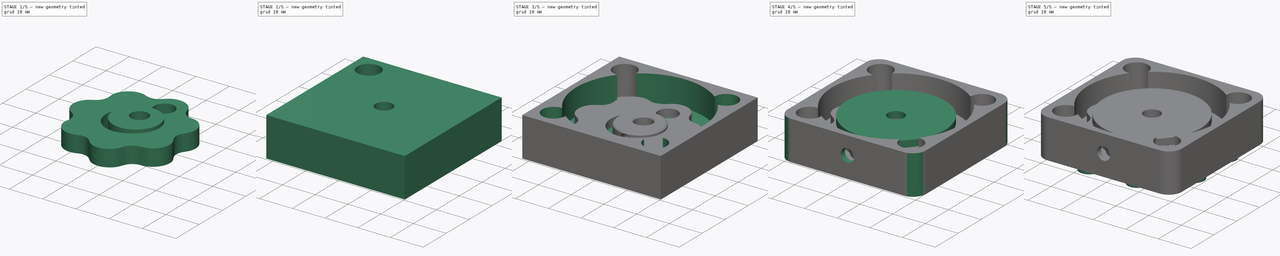
[diagram: build sequence overview — one tinted view per stage of 5, left to right]
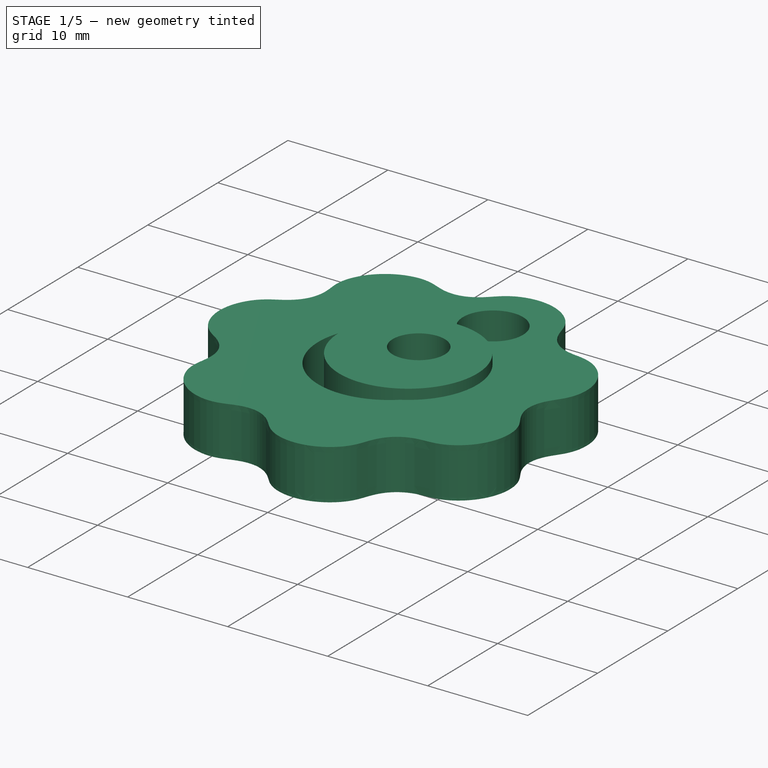
[diagram: stage 1 of 5 — iso view after this stage's code; geometry added in this stage tinted green]
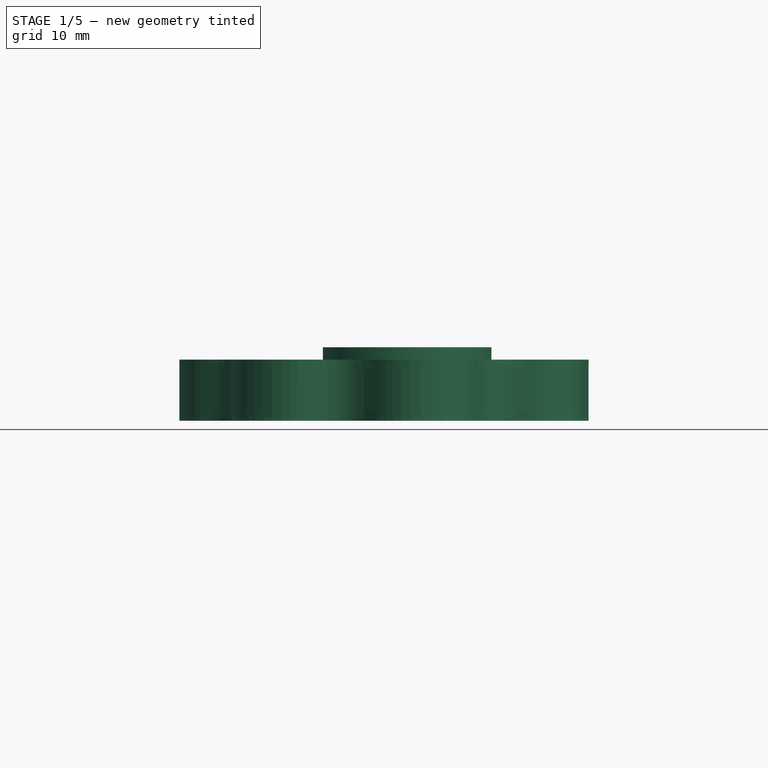
[diagram: stage 1 of 5 — front view after this stage's code; geometry added in this stage tinted green]
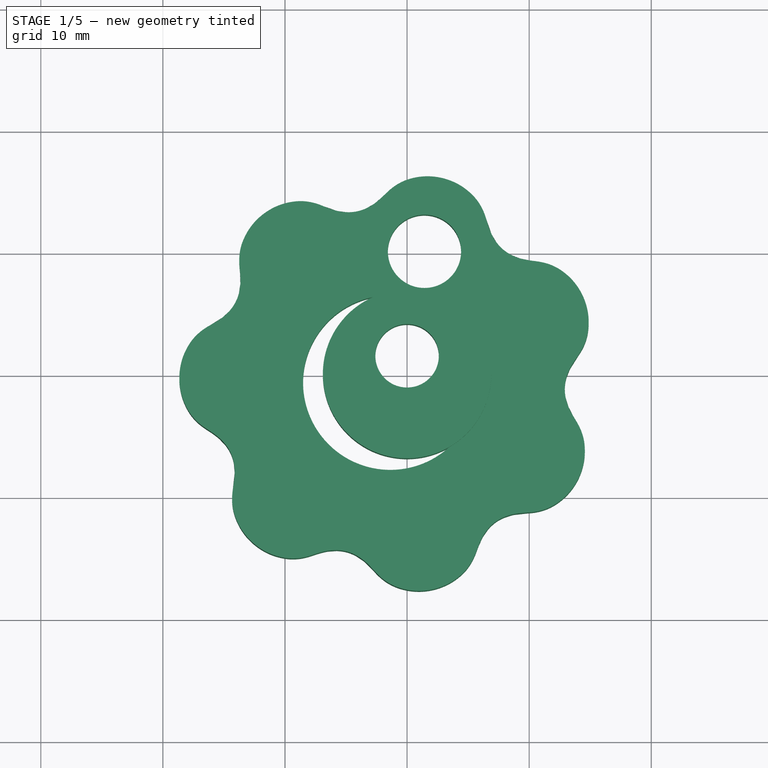
[diagram: stage 1 of 5 — top view after this stage's code; geometry added in this stage tinted green]
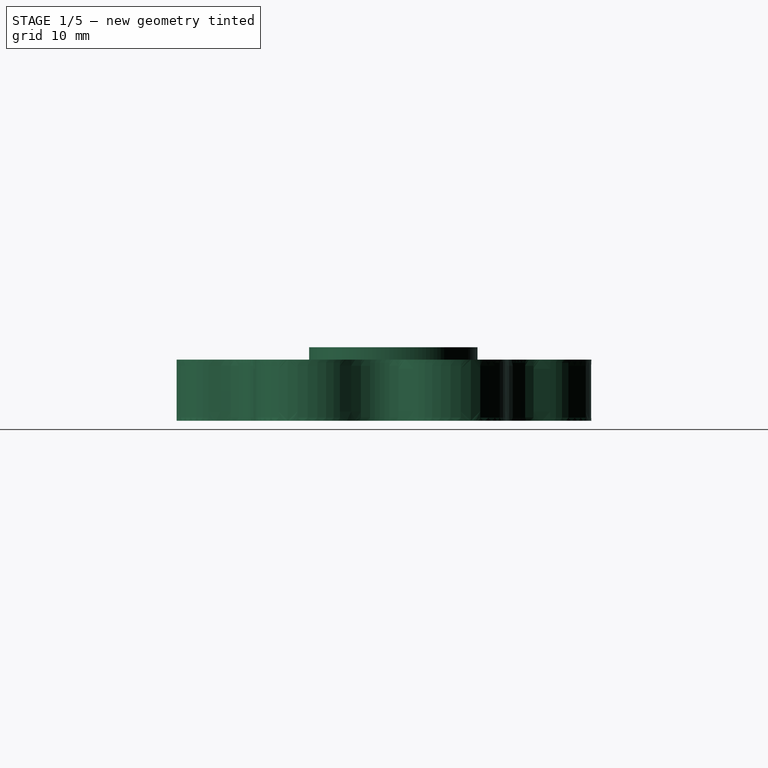
[diagram: stage 1 of 5 — right view after this stage's code; geometry added in this stage tinted green]
FCSTD DOCUMENT  (FreeCAD 0.19R24267 +99 (Git))
Label: GearboxCycloidal
License: All rights reserved
LicenseURL: http://en.wikipedia.org/wiki/All_rights_reserved
objects: Sketcher::SketchObject×10, PartDesign::CoordinateSystem×7, PartDesign::Pocket×5, PartDesign::Body×5, PartDesign::Pad×4, App::Part×4, PartDesign::PolarPattern×3, PartDesign::FeaturePython×2, PartDesign::Line×2, Spreadsheet::Sheet×1, PartDesign::Hole×1, PartDesign::Fillet×1, PartDesign::Chamfer×1, App::DocumentObjectGroup×1
note: 53 computed .brp shape members not serialized (recipe doc carries the construction recipe); baked Part::Feature solids carry a one-line shape summary decoded from their .brp

FEATURE [Sketcher::SketchObject] Sketch008
  FullyConstrained = false
  MapMode = 5
  Support = -> [XY_Plane010]
  expr: Constraints[2] = Spreadsheet.Eccentricity
  expr: Constraints[1] = Spreadsheet.AcenterOuterDiameter - Spreadsheet.AcenterOuterDiameterCorrection
  expr: Constraints[0] = Spreadsheet.StepperAxisHoleDiameter
  sketch-geometry (2):
    g0: Circle CenterX=0 CenterY=1.57071 CenterZ=0 NormalX=0 NormalY=0 NormalZ=1 AngleXU=0 Radius=2.6
    g1: Circle CenterX=0 CenterY=0.0707107 CenterZ=0 NormalX=0 NormalY=0 NormalZ=1 AngleXU=0 Radius=6.9
  constraints (3):
    c: Diameter(g0) = 5.2
    c: Diameter(g1) = 13.8
    c: DistanceY(g1,g0) = 1.5
FEATURE [PartDesign::Pad] Pad002
  Direction = (1,1,1)
  Length = 5
  Length2 = 100
  Profile = -> Sketch008
  Refine = true
  Type = 0
  expr: Length = Spreadsheet.AcenterHeight
FEATURE [PartDesign::CoordinateSystem] Top
  AttacherType = Attacher::AttachEngine3D
  MapMode = 11
  Placement = pos=(-9e-16,0.0707107,5) rot=(0,0,1;1.5708rad)
  Support = -> [Pad002]
FEATURE [PartDesign::CoordinateSystem] Bottom
  AttacherType = Attacher::AttachEngine3D
  MapMode = 11
  Placement = pos=(-9e-16,0.0707107,0) rot=(0,0,1;1.5708rad)
  Support = -> [Pad002]
FEATURE [PartDesign::Body] Body002  label="Acenter Body"
  Group = -> [Sketch008,Pad002,Sketch009,Pocket003,Chamfer,Top,Bottom]
  Origin = -> Origin010
  Placement = pos=(-1.5,-0.6,0) rot=(0,0,-1;1.22173rad)
  Tip = -> Chamfer
FEATURE [PartDesign::CoordinateSystem] Bottom001
  AttacherType = Attacher::AttachEngine3D
  MapMode = 5
  Placement = pos=(0,0,-2.5) rot=(1,0,0;3.14159rad)
  Support = -> [Pad]
FEATURE [PartDesign::CoordinateSystem] Base  label="Base001"
  AttacherType = Attacher::AttachEngine3D
  MapMode = 5
  Placement = pos=(0,0,1.5) rot=(0,0,1;0rad)
  Support = -> [Pocket001]
FEATURE [PartDesign::CoordinateSystem] Top001
  AttacherType = Attacher::AttachEngine3D
  MapMode = 5
  Placement = pos=(0,0,9.5) rot=(0,0,1;0rad)
  Support = -> [Pocket001]
FEATURE [PartDesign::CoordinateSystem] Bottom003
  AttacherType = Attacher::AttachEngine3D
  MapMode = 5
  Placement = pos=(0,0,-3.51) rot=(0.978148,0.207912,0;3.14159rad)
  Support = -> [hypocycloidgear001]
FEATURE [PartDesign::Body] hypocycloidgear001Body  label="hypocycloidgearRollers"
  Group = -> [hypocycloidgear001,Bottom003]
  Origin = -> Origin009
  Tip = -> hypocycloidgear001
FEATURE [PartDesign::FeaturePython] hypocycloidgear002  label="hypocycloidgear3Dprinter001"  # WARN: FeaturePython — macro-defined, semantics opaque (R4)
  AttacherType = Attacher::AttachEngine3D
  Placement = pos=(0,0,-1.01) rot=(0,0,1;0.418879rad)
  center_pins = true
  disk_height = 5
  eccentricity = 1.5
  hole_radius = 7.15
  pin_circle_radius = 18.8
  pin_height = 5
  pressure_angle_lim = 50
  pressure_angle_offset = 0.01
  roller_diameter = 6
  segment_count = 20
  show_disk0 = true
  show_disk1 = false
  show_pins = false
  teeth_number = 7
  version = 0.0.3
  expr: roller_diameter = Spreadsheet.RollerDiameter
  expr: teeth_number = Spreadsheet.TeethNumber
  expr: eccentricity = Spreadsheet.Eccentricity
  expr: pin_height = Spreadsheet.GearHeight
  expr: disk_height = Spreadsheet.GearHeight
  expr: hole_radius = 7.15
  expr: pin_circle_radius = Spreadsheet.PinCircleRadius - Spreadsheet.PinCircleRadiusCorrection
FEATURE [PartDesign::CoordinateSystem] Bottom005
  AttacherType = Attacher::AttachEngine3D
  MapMode = 5
  Placement = pos=(0,0,-1.01) rot=(0.978148,0.207912,0;3.14159rad)
  Support = -> [hypocycloidgear002]
FEATURE [PartDesign::Line] DatumLine002  label="CycloidCenter"
  AttacherType = Attacher::AttachEngineLine
  Length = 20
  MapMode = 19
  Placement = pos=(-1.37032,-0.610105,3.99) rot=(0,0,1;0.418879rad)
  ResizeMode = 0
  Support = -> [hypocycloidgear002]
FEATURE [Sketcher::SketchObject] Sketch019
  FullyConstrained = true
  MapMode = 2
  Placement = pos=(-1.37032,-0.610105,3.99) rot=(0,0,1;0.418879rad)
  Support = -> [DatumLine002]
  expr: Constraints[4] = 360 / Spreadsheet.TeethNumber
  expr: Constraints[1] = Spreadsheet.OutputShaftHoleRadius
  expr: Constraints[0] = Spreadsheet.OuputShaftHoleDiameter
  sketch-geometry (2):
    g0: Circle CenterX=6.92697 CenterY=8.68615 CenterZ=0 NormalX=0 NormalY=0 NormalZ=1 AngleXU=0 Radius=3
    g1: LineSegment StartX=6.92697 StartY=8.68615 StartZ=0 EndX=9e-16 EndY=0 EndZ=0
  constraints (5):
    c: Diameter(g0) = 6
    c: Distance(g0,g-1) = 11.11
    c: Coincident(g1,g0)
    c: Coincident(g1,g-1)
    c: Angle(g-1,g1) = 0.897598
FEATURE [PartDesign::Pocket] Pocket004
  BaseFeature = -> hypocycloidgear002
  Length = 5
  Length2 = 100
  Placement = pos=(0,0,-1.01) rot=(0,0,1;0.418879rad)
  Profile = -> Sketch019
  Refine = true
  Type = 1
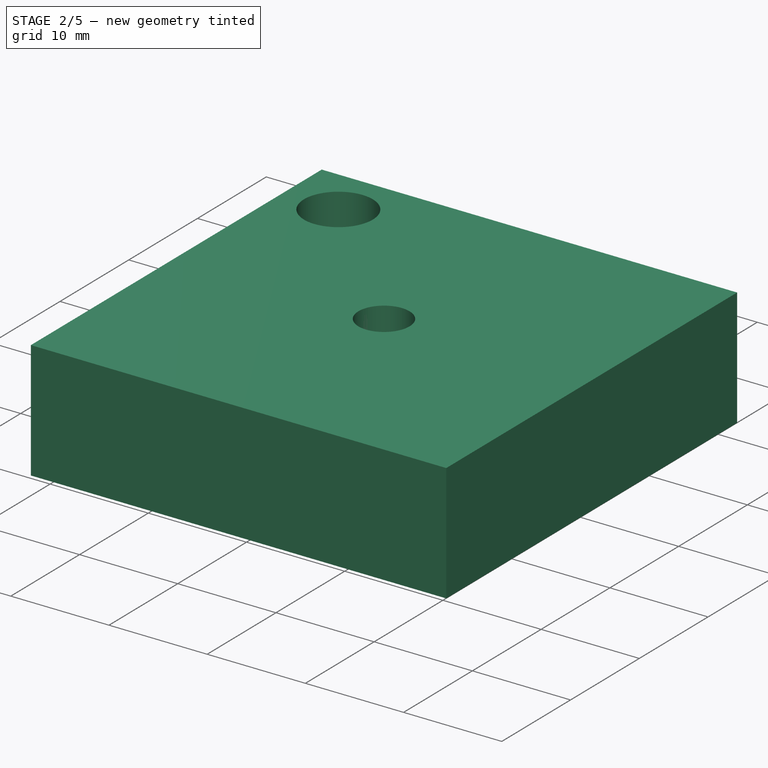
[diagram: stage 2 of 5 — iso view after this stage's code; geometry added in this stage tinted green]
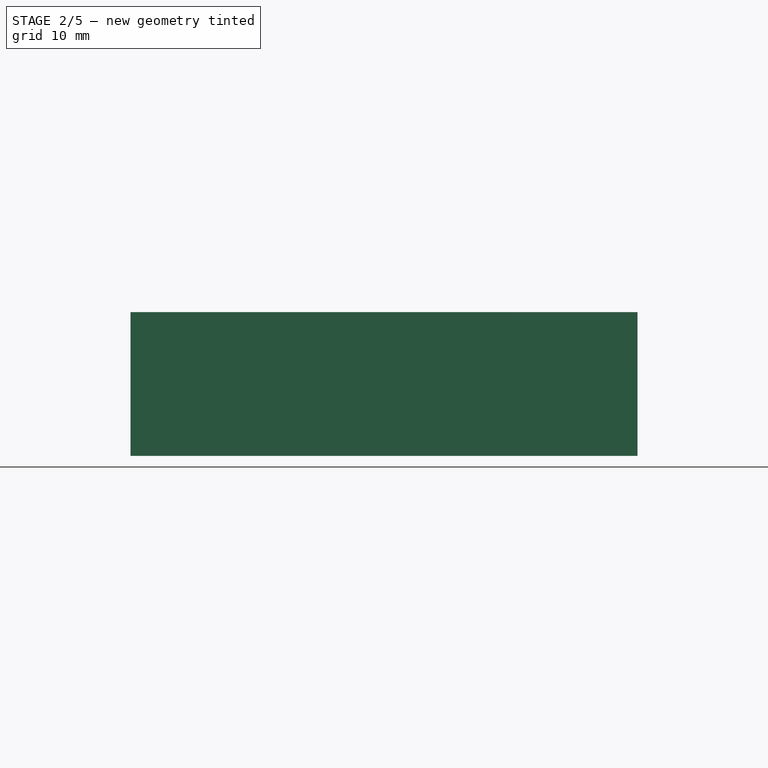
[diagram: stage 2 of 5 — front view after this stage's code; geometry added in this stage tinted green]
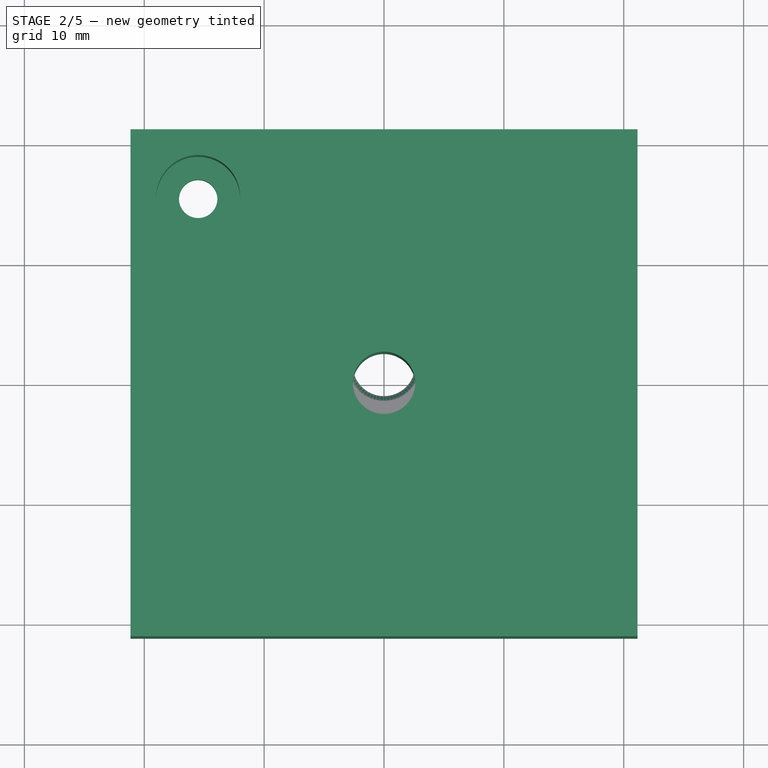
[diagram: stage 2 of 5 — top view after this stage's code; geometry added in this stage tinted green]
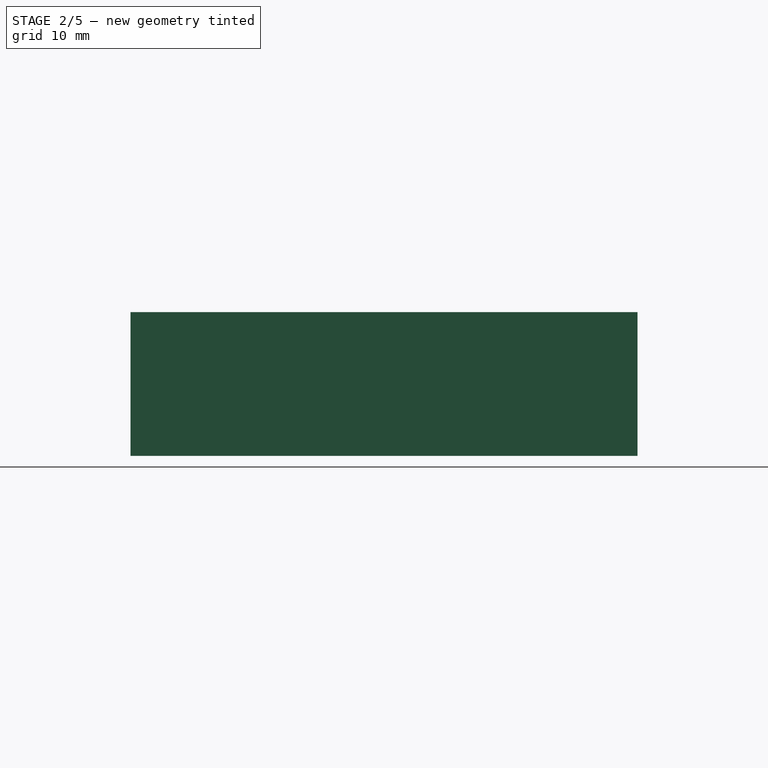
[diagram: stage 2 of 5 — right view after this stage's code; geometry added in this stage tinted green]
FEATURE [Sketcher::SketchObject] Sketch  label="BaseSheet"
  AttachmentOffset = pos=(0,0,-2.5) rot=(0,0,1;0rad)
  FullyConstrained = true
  MapMode = 5
  Placement = pos=(0,0,-2.5) rot=(0,0,1;0rad)
  Support = -> [XY_Plane]
  sketch-geometry (5):
    g0: LineSegment StartX=-21.15 StartY=-21.15 StartZ=0 EndX=21.15 EndY=-21.15 EndZ=0
    g1: LineSegment StartX=21.15 StartY=-21.15 StartZ=0 EndX=21.15 EndY=21.15 EndZ=0
    g2: LineSegment StartX=21.15 StartY=21.15 StartZ=0 EndX=-21.15 EndY=21.15 EndZ=0
    g3: LineSegment StartX=-21.15 StartY=21.15 StartZ=0 EndX=-21.15 EndY=-21.15 EndZ=0
    g4: Circle CenterX=0 CenterY=0 CenterZ=0 NormalX=0 NormalY=0 NormalZ=1 AngleXU=0 Radius=2.6
  constraints (13):
    c: Coincident(g0,g1)
    c: Coincident(g1,g2)
    c: Coincident(g2,g3)
    c: Coincident(g3,g0)
    c: Horizontal(g0)
    c: Horizontal(g2)
    c: Vertical(g1)
    c: Vertical(g3)
    c: Symmetric(g0,g1,g-1)
    c: DistanceX(g2,g2) = 42.3
    c: Equal(g2,g3)
    c: Coincident(g4,g-1)
    c: Diameter(g4) = 5.2
FEATURE [PartDesign::Pad] Pad  label="Base"
  Direction = (1,1,1)
  Length = 12
  Length2 = 100
  Profile = -> Sketch
  Refine = true
  Type = 0
FEATURE [Sketcher::SketchObject] Sketch001
  FullyConstrained = true
  MapMode = 5
  Placement = pos=(0,0,9.5) rot=(0,0,1;0rad)
  Support = -> [Pad]
  sketch-geometry (1):
    g0: Circle CenterX=-15.5 CenterY=15.5 CenterZ=0 NormalX=0 NormalY=0 NormalZ=1 AngleXU=0 Radius=1.6
  constraints (3):
    c: Diameter(g0) = 3.2
    c: DistanceY(g-1,g0) = 15.5
    c: DistanceX(g0,g-1) = 15.5
FEATURE [Spreadsheet::Sheet] Spreadsheet  label="Dimensions"
  cells = A2=Stepper; A3=StepperSize; B3=42.3; A4=StepperAxisDiameter; B4(StepperAxisDiameter)=5; A5=StepperBoltHolediameter; B5=3.2; A6=StepperRegisterDiameter; B6=22; A7=StepperRegisterHeight; B7=2.5; A8=StepperBoltDistance; B8=15.5; A9=StepperAxisHoleDiameter; B9(StepperAxisHoleDiameter)=5.2; A11=Base; A14=Cycloid Gear; A15=PinCircleRadius; B15(PinCircleRadius)=19; A16=HoleRadius; B16(HoleRadius)=14.2; A17=Eccentricity; B17(Eccentricity)=1.5; A18=PinCircleRadiusCorrection; B18(PinCircleRadiusCorrection)=0.2; A19=HoleRadiusCorrection; B19(HoleRadiusCorrection)=0; A20=GearHeight; B20(GearHeight)=5; A21=RollerDiameter; B21(RollerDiameter)=6; A22=TeethNumber; B22(TeethNumber)=7; A23=OuputShaftHoleDiameter; B23(OuputShaftHoleDiameter)=6; A24=OutputShaftHoleRadius; B24(OutputShaftHoleRadius)=11.11; A25=OutputShaftHoleRotation; B25(OutputShaftHoleRotation)==90 - 360 / B22; A27=Acenter; A28=AcenterOuterDiameter; B28(AcenterOuterDiameter)=14; A29=StepperAxisDiameterCorrection; B29(StepperAxisDiameterCorrection)=0.2; A30=AcenterOuterDiameterCorrection; B30(AcenterOuterDiameterCorrection)=0.2; A31=AcenterHeight; B31(AcenterHeight)=5; A32=AcenterScrewHeight; B32(AcenterScrewHeight)=2.5; A33=AcenterScrewHole; B33(AcenterScrewHole)=3.2; A35=OutputShaft; A36=OutputShaftHeigth; B36(OutputShaftHeigth)=2; A37=PillarHeigth; B37(PillarHeigth)=3; A38=PillarDiameter; B38(PillarDiameter)==B23 - B17 * 2 + B41; A39=OutputShaftDiameter; B39(OutputShaftDiameter)=30; A40=PillarRadius; B40(PillarRadius)=10; A41=PillarDiameterCorrection; B41(PillarDiameterCorrection)=-0.2
FEATURE [PartDesign::Hole] Hole
  BaseFeature = -> Pad
  Depth = 25
  DepthType = 1
  Diameter = 3.2
  DrillForDepth = false
  DrillPoint = 1
  DrillPointAngle = 118
  HoleCutCountersinkAngle = 90
  HoleCutCustomValues = false
  HoleCutDepth = 9
  HoleCutDiameter = 7
  HoleCutType = 1
  ModelActualThread = false
  Profile = -> Sketch001
  Refine = true
  Tapered = false
  TaperedAngle = 90
  ThreadAngle = 0
  ThreadClass = 0
  ThreadCutOffInner = 0
  ThreadCutOffOuter = 0
  ThreadDirection = 0
  ThreadFit = 0
  ThreadPitch = 0
  ThreadSize = 0
  ThreadType = 0
  Threaded = false
FEATURE [Sketcher::SketchObject] Sketch009
  FullyConstrained = true
  MapMode = 5
  Placement = pos=(0,0,0) rot=(1,0,0;1.5708rad)
  Support = -> [XZ_Plane010]
  expr: Constraints[1] = Spreadsheet.AcenterScrewHole
  expr: Constraints[2] = Spreadsheet.AcenterScrewHeight
  sketch-geometry (1):
    g0: Circle CenterX=0 CenterY=2.5 CenterZ=0 NormalX=0 NormalY=0 NormalZ=1 AngleXU=0 Radius=1.6
  constraints (3):
    c: PointOnObject(g0,g-2)
    c: Diameter(g0) = 3.2
    c: DistanceY(g-1,g0) = 2.5
FEATURE [PartDesign::Pocket] Pocket003
  BaseFeature = -> Pad002
  Length = 5
  Length2 = 100
  Profile = -> Sketch009
  Refine = true
  Reversed = true
  Type = 1
FEATURE [PartDesign::Chamfer] Chamfer
  Angle = 45
  Base = -> Pocket003 [Face5,Face1]
  BaseFeature = -> Pocket003
  ChamferType = 0
  FlipDirection = false
  Refine = true
  Size = 0.4
  Size2 = 1
  SupportTransform = false
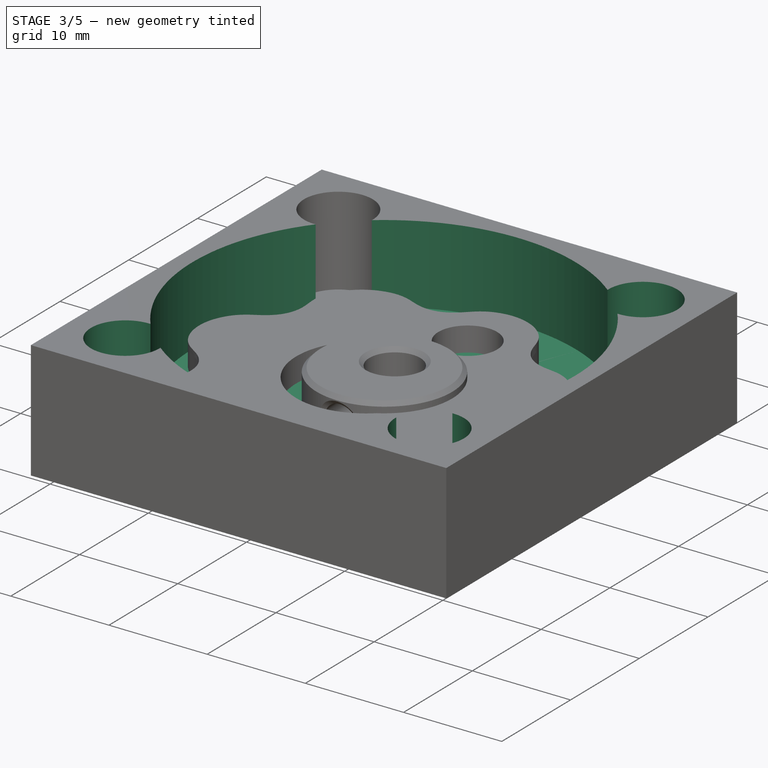
[diagram: stage 3 of 5 — iso view after this stage's code; geometry added in this stage tinted green]
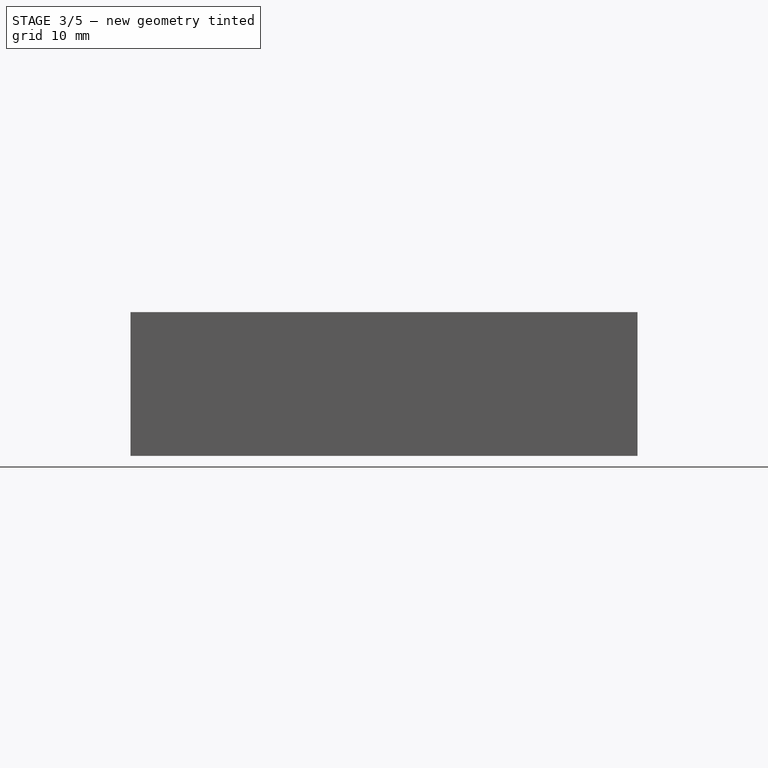
[diagram: stage 3 of 5 — front view after this stage's code; geometry added in this stage tinted green]
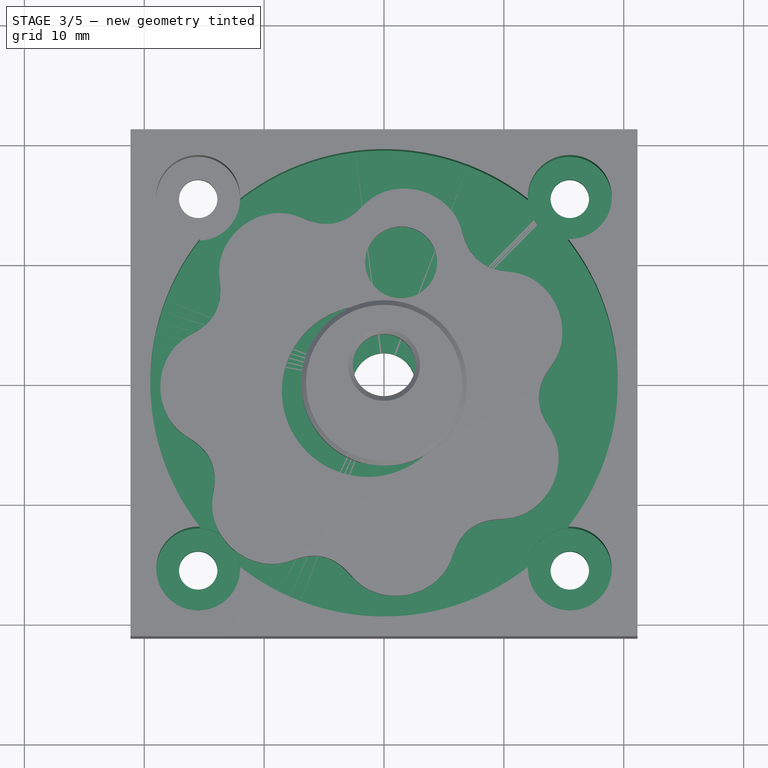
[diagram: stage 3 of 5 — top view after this stage's code; geometry added in this stage tinted green]
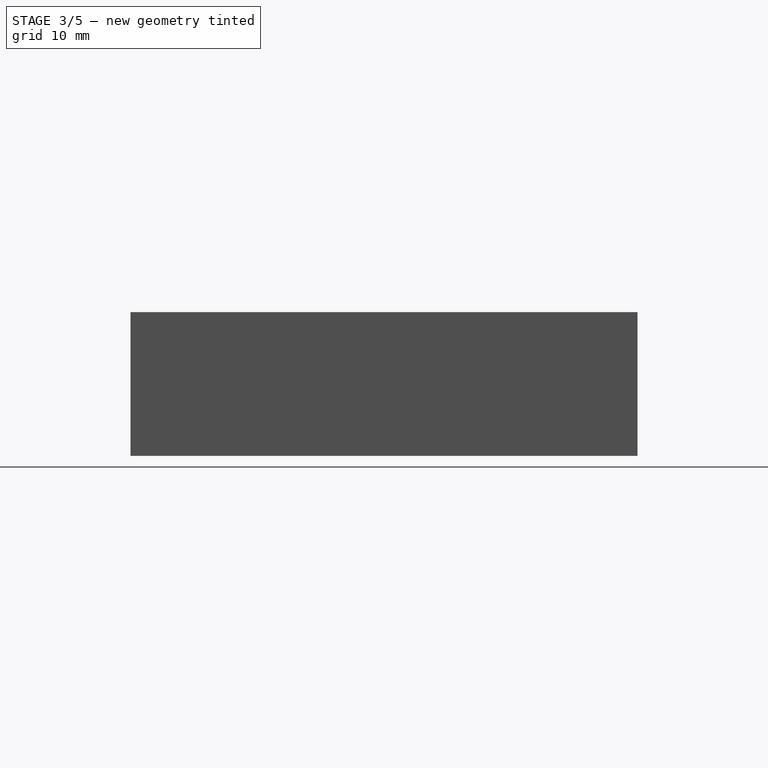
[diagram: stage 3 of 5 — right view after this stage's code; geometry added in this stage tinted green]
FEATURE [PartDesign::PolarPattern] PolarPattern
  Angle = 360
  Axis = -> Sketch001 [N_Axis]
  BaseFeature = -> Hole
  Occurrences = 4
  Originals = -> [Hole]
  Refine = true
FEATURE [Sketcher::SketchObject] Sketch002  label="StepperRegister001"
  FullyConstrained = true
  MapMode = 5
  Placement = pos=(0,0,-2.5) rot=(1,0,0;3.14159rad)
  Support = -> [PolarPattern]
  sketch-geometry (1):
    g0: Circle CenterX=0 CenterY=0 CenterZ=0 NormalX=0 NormalY=0 NormalZ=1 AngleXU=0 Radius=11.15
  constraints (2):
    c: Coincident(g0,g-1)
    c: Diameter(g0) = 22.3
FEATURE [PartDesign::Pocket] Pocket  label="StepperRegister"
  BaseFeature = -> PolarPattern
  Length = 2.5
  Length2 = 100
  Profile = -> Sketch002
  Refine = true
  Type = 0
FEATURE [Sketcher::SketchObject] Sketch004  label="CycloicPocket"
  FullyConstrained = true
  MapMode = 5
  Placement = pos=(0,0,9.5) rot=(0,0,1;0rad)
  Support = -> [Pocket]
  expr: Constraints[1] = Spreadsheet.PinCircleRadius * 2 + 1
  sketch-geometry (1):
    g0: Circle CenterX=0 CenterY=0 CenterZ=0 NormalX=0 NormalY=0 NormalZ=1 AngleXU=0 Radius=19.5
  constraints (2):
    c: Coincident(g0,g-1)
    c: Diameter(g0) = 39
FEATURE [PartDesign::Pocket] Pocket001
  BaseFeature = -> Pocket
  Length = 8
  Length2 = 100
  Profile = -> Sketch004
  Refine = true
  Type = 0
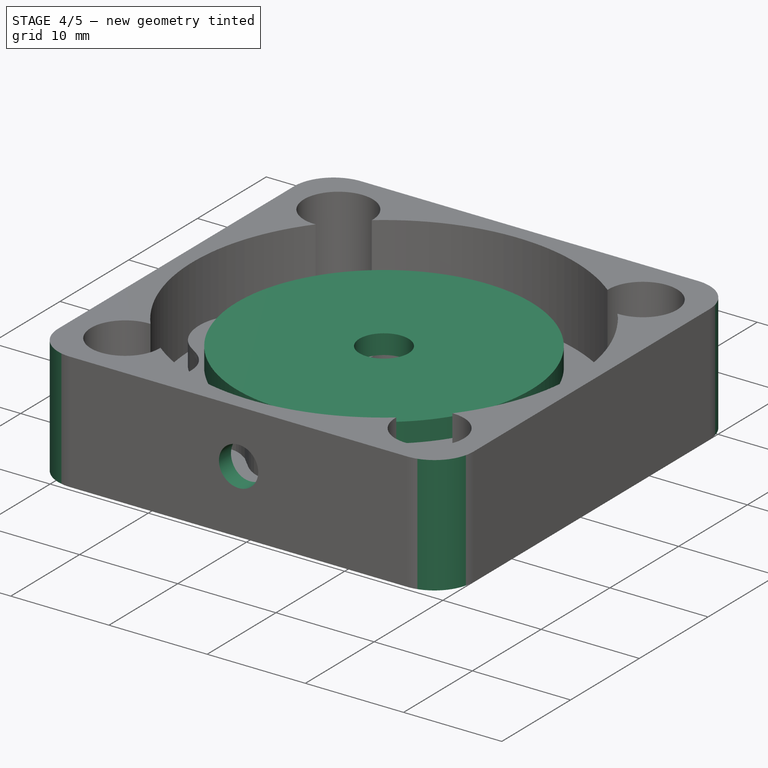
[diagram: stage 4 of 5 — iso view after this stage's code; geometry added in this stage tinted green]
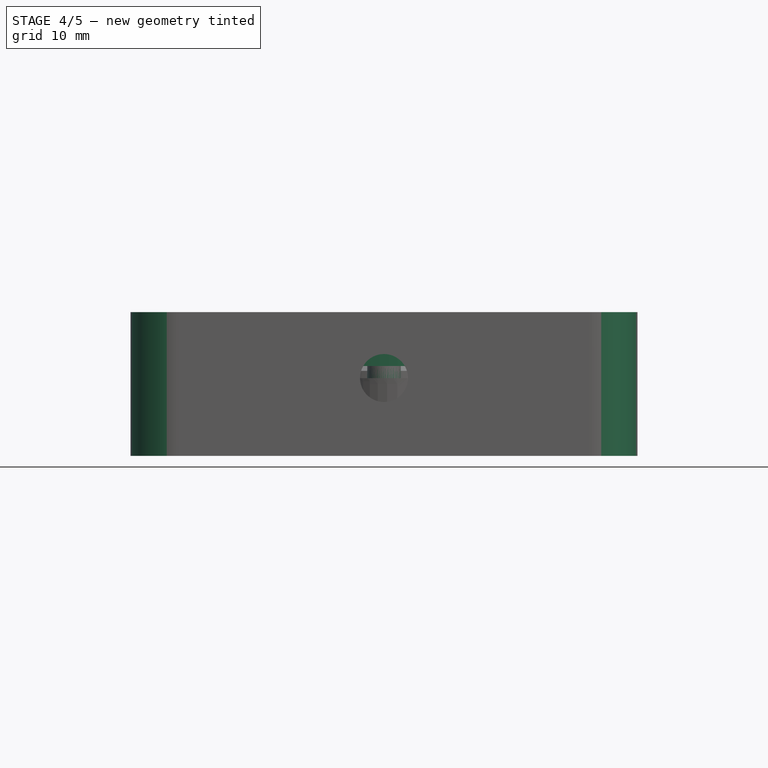
[diagram: stage 4 of 5 — front view after this stage's code; geometry added in this stage tinted green]
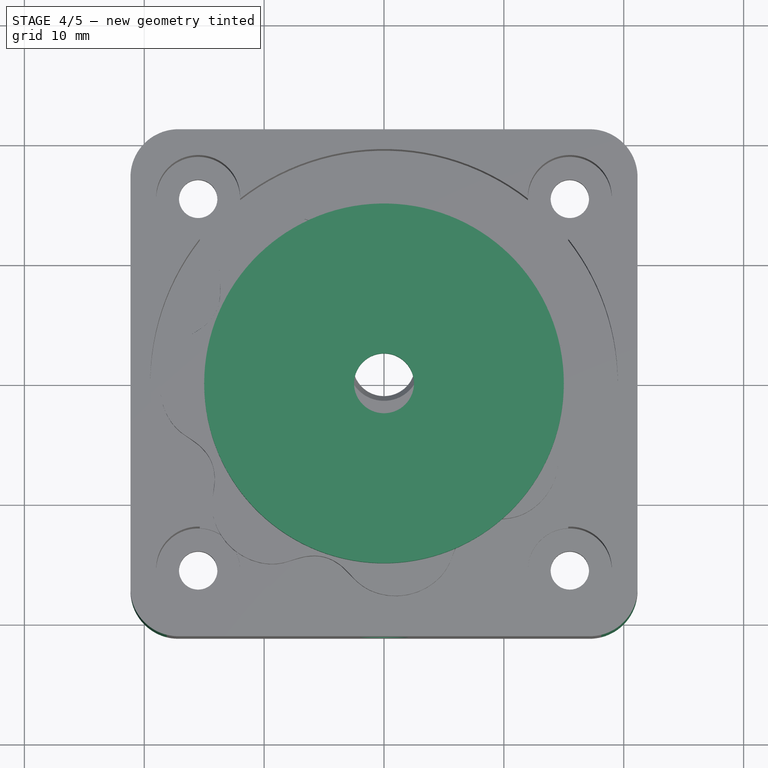
[diagram: stage 4 of 5 — top view after this stage's code; geometry added in this stage tinted green]
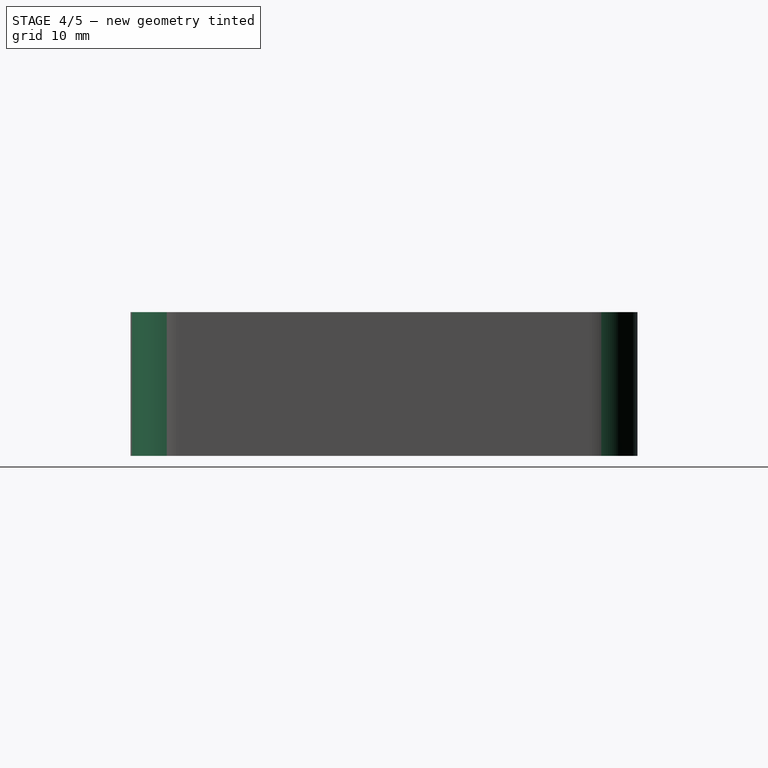
[diagram: stage 4 of 5 — right view after this stage's code; geometry added in this stage tinted green]
FEATURE [PartDesign::Fillet] Fillet
  Base = -> Pocket001 [Edge1,Edge2,Edge8,Edge5]
  BaseFeature = -> Pocket001
  Radius = 4
  Refine = true
  SupportTransform = false
FEATURE [Sketcher::SketchObject] Sketch023
  AttachmentOffset = pos=(0,0,5) rot=(0,0,1;0rad)
  FullyConstrained = true
  MapMode = 5
  Placement = pos=(0,0,5) rot=(0,0,1;0rad)
  Support = -> [XY_Plane017]
  expr: .AttachmentOffset.Base.z = Spreadsheet.GearHeight
  expr: Constraints[3] = Spreadsheet.StepperAxisDiameter
  sketch-geometry (2):
    g0: Circle CenterX=0 CenterY=0 CenterZ=0 NormalX=0 NormalY=0 NormalZ=1 AngleXU=0 Radius=15
    g1: Circle CenterX=0 CenterY=0 CenterZ=0 NormalX=0 NormalY=0 NormalZ=1 AngleXU=0 Radius=2.5
  constraints (4):
    c: Coincident(g0,g-1)
    c: Diameter(g0) = 30
    c: Coincident(g1,g0)
    c: Diameter(g1) = 5
FEATURE [PartDesign::Pad] Pad003
  Direction = (1,1,1)
  Length = 2
  Length2 = 100
  Profile = -> Sketch023
  Refine = true
  Type = 0
FEATURE [Sketcher::SketchObject] Sketch024
  FullyConstrained = true
  MapMode = 5
  Placement = pos=(0,0,5) rot=(1,0,0;3.14159rad)
  Support = -> [Pad003]
  expr: Constraints[2] = Spreadsheet.PillarRadius
  expr: Constraints[1] = Spreadsheet.PillarDiameter
  sketch-geometry (1):
    g0: Circle CenterX=0 CenterY=10 CenterZ=0 NormalX=0 NormalY=0 NormalZ=1 AngleXU=0 Radius=1.4
  constraints (3):
    c: PointOnObject(g0,g-2)
    c: Diameter(g0) = 2.8
    c: DistanceY(g-1,g0) = 10
FEATURE [PartDesign::Pad] Pad004
  BaseFeature = -> Pad003
  Direction = (1,1,1)
  Length = 3
  Length2 = 100
  Profile = -> Sketch024
  Refine = true
  Type = 0
  expr: Length = Spreadsheet.PillarHeigth
FEATURE [PartDesign::Body] Body004
  Group = -> [Sketch023,Pad003,Sketch024,Pad004,PolarPattern007]
  Origin = -> Origin017
  Tip = -> PolarPattern007
FEATURE [App::Part] Part003  label="OutputShaft"
  Group = -> [Body004]
  Origin = -> Origin015
FEATURE [Sketcher::SketchObject] Sketch025
  FullyConstrained = false
  MapMode = 5
  Placement = pos=(0,0,0) rot=(1,0,0;1.5708rad)
  Support = -> [XZ_Plane]
  sketch-geometry (1):
    g0: Circle CenterX=0 CenterY=4 CenterZ=0 NormalX=0 NormalY=0 NormalZ=1 AngleXU=0 Radius=2
  constraints (2):
    c: PointOnObject(g0,g-2)
    c: Diameter(g0) = 4
FEATURE [PartDesign::Pocket] Pocket005
  BaseFeature = -> Fillet
  Length = 5
  Length2 = 100
  Profile = -> Sketch025
  Refine = true
  Reversed = true
  Type = 1
FEATURE [PartDesign::Body] Body  label="BaseBody"
  Group = -> [Pad,Sketch,Sketch001,Sketch002,Hole,PolarPattern,Pocket,Sketch004,Pocket001,Fillet,Top001,Sketch025,Pocket005]
  Origin = -> Origin
  Placement = pos=(0,0,-5) rot=(0,0,1;0rad)
  Tip = -> Pocket005
FEATURE [App::Part] Part  label="NemaBase"
  Group = -> [Body,Bottom001,Base,hypocycloidgear001Body]
  Origin = -> Origin001
FEATURE [App::Part] Part004  label="Acenter"
  Group = -> [Body002]
  Origin = -> Origin018
FEATURE [PartDesign::Line] DatumLine003  label="CycoidDiskCenter"
  AttacherType = Attacher::AttachEngineLine
  Length = 20
  MapMode = 19
  Placement = pos=(1.67418,11.1089,3.99) rot=(0,0,1;1.31613rad)
  ResizeMode = 0
  Support = -> [Pocket004]
FEATURE [PartDesign::Body] hypocycloidgear001Body001  label="hypocycloidgear3Dprinter"
  Group = -> [hypocycloidgear002,Sketch019,Bottom005,Pocket004,PolarPattern006,DatumLine003]
  Origin = -> Origin013
  Tip = -> PolarPattern006
FEATURE [App::Part] Part002  label="CycloidialDisk"
  Group = -> [hypocycloidgear001Body001]
  Origin = -> Origin014
FEATURE [App::DocumentObjectGroup] Parts
  Group = -> [Part,Part002,DatumLine002,Part003,Part004]
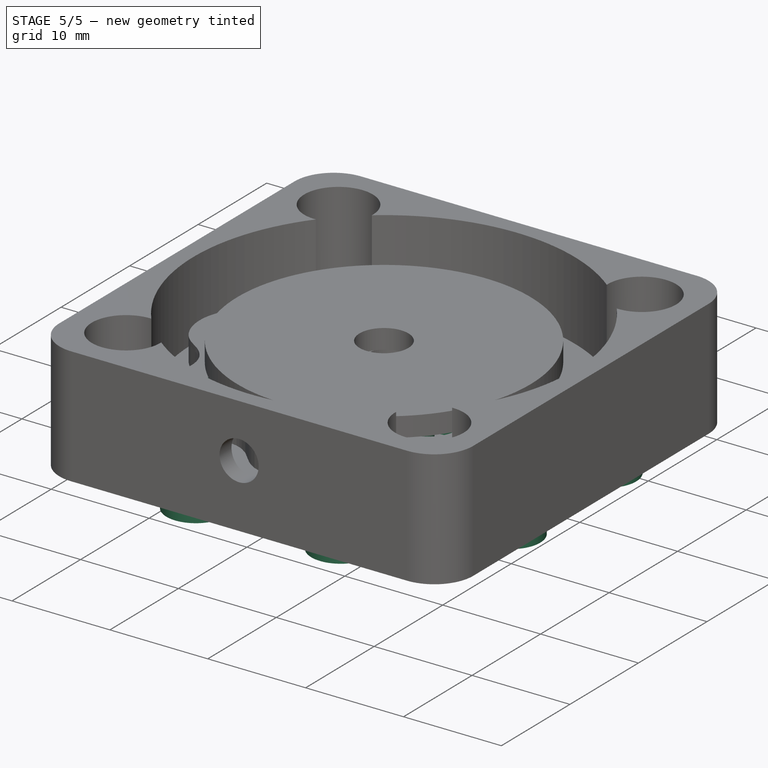
[diagram: stage 5 of 5 — iso view after this stage's code; geometry added in this stage tinted green]
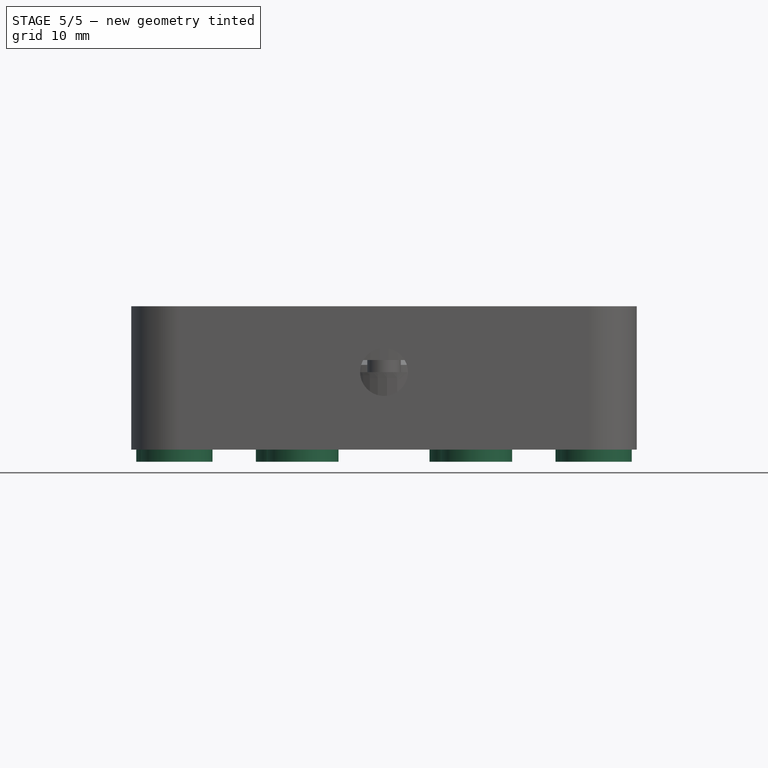
[diagram: stage 5 of 5 — front view after this stage's code; geometry added in this stage tinted green]
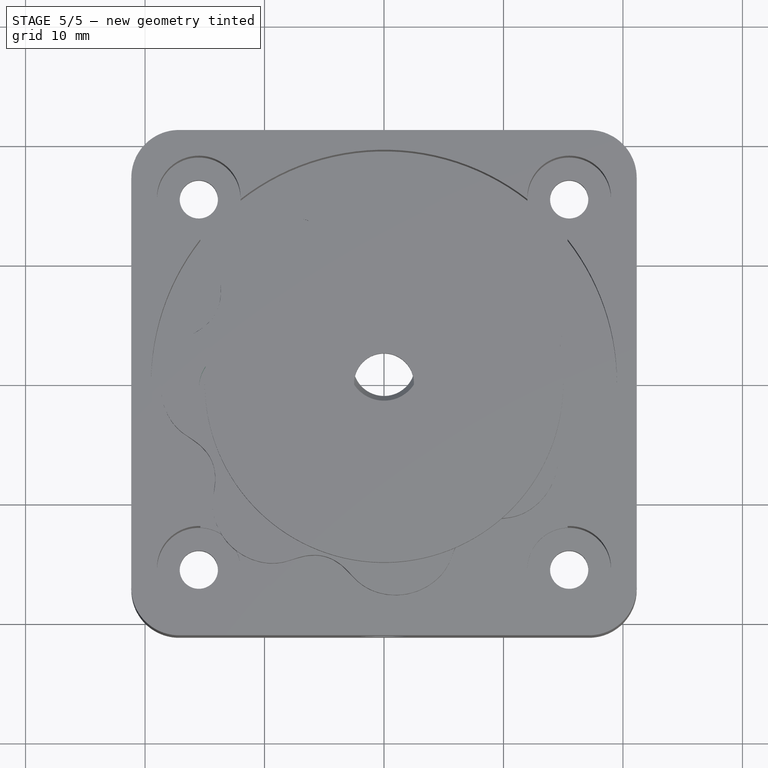
[diagram: stage 5 of 5 — top view after this stage's code; geometry added in this stage tinted green]
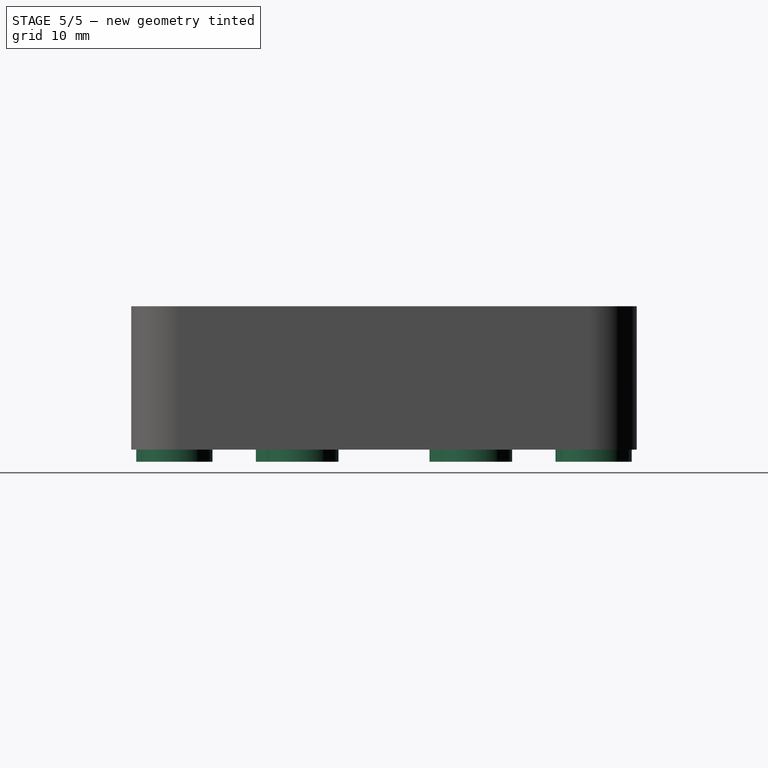
[diagram: stage 5 of 5 — right view after this stage's code; geometry added in this stage tinted green]
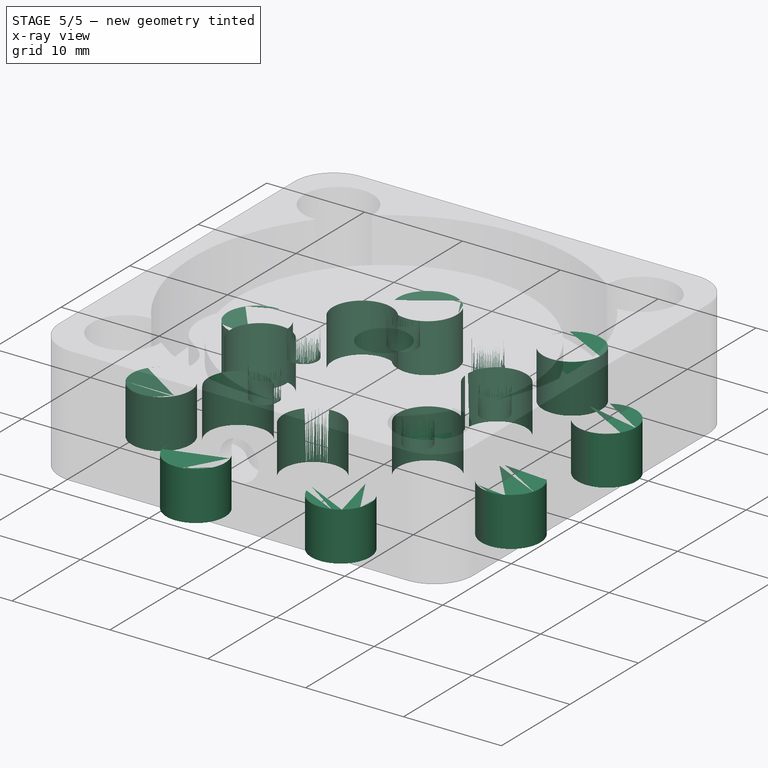
[diagram: stage 5 of 5 — x-ray composite at the iso view; earlier geometry ghosted, this stage's added geometry solid]
FEATURE [PartDesign::FeaturePython] hypocycloidgear001  # WARN: FeaturePython — macro-defined, semantics opaque (R4)
  AttacherType = Attacher::AttachEngine3D
  Placement = pos=(0,0,-1.01) rot=(0,0,1;0.418879rad)
  center_pins = true
  disk_height = 5
  eccentricity = 1.5
  hole_radius = 14.2
  pin_circle_radius = 19
  pin_height = 5
  pressure_angle_lim = 50
  pressure_angle_offset = 0.01
  roller_diameter = 6
  segment_count = 20
  show_disk0 = false
  show_disk1 = false
  show_pins = true
  teeth_number = 7
  version = 0.0.3
  expr: teeth_number = Spreadsheet.TeethNumber
  expr: eccentricity = Spreadsheet.Eccentricity
  expr: roller_diameter = Spreadsheet.RollerDiameter
  expr: disk_height = Spreadsheet.GearHeight
  expr: pin_height = Spreadsheet.GearHeight
  expr: hole_radius = Spreadsheet.HoleRadius
  expr: pin_circle_radius = Spreadsheet.PinCircleRadius
FEATURE [PartDesign::PolarPattern] PolarPattern006
  Angle = 360
  Axis = -> DatumLine002 [Line]
  BaseFeature = -> Pocket004
  Occurrences = 7
  Originals = -> [Pocket004]
  Placement = pos=(0,0,-1.01) rot=(0,0,1;0.418879rad)
  Refine = true
  expr: Occurrences = Spreadsheet.TeethNumber
FEATURE [PartDesign::PolarPattern] PolarPattern007
  Angle = 360
  Axis = -> Sketch024 [N_Axis]
  BaseFeature = -> Pad004
  Occurrences = 7
  Originals = -> [Pad004]
  Refine = true
  expr: Occurrences = Spreadsheet.TeethNumber
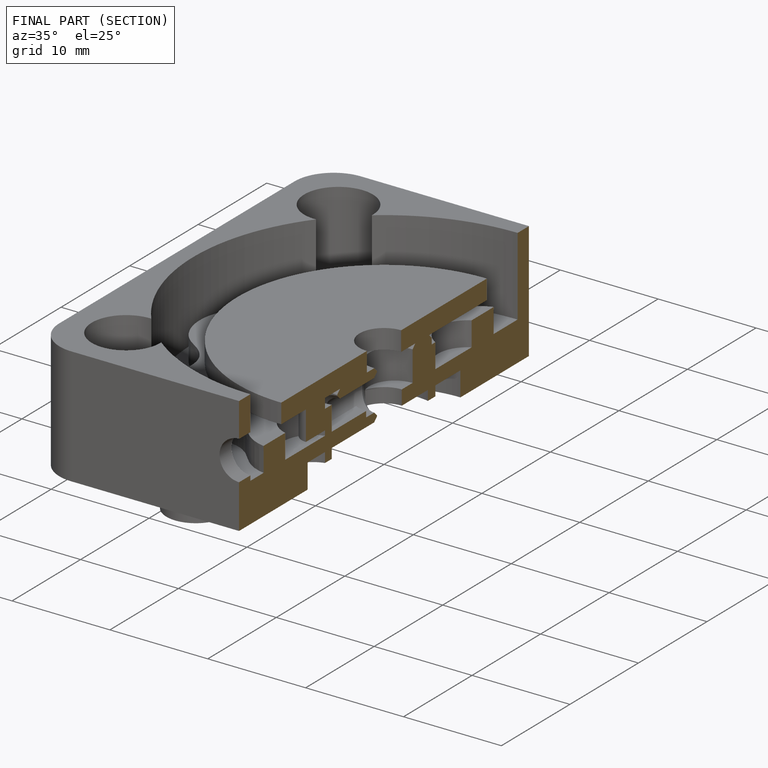
[diagram: finished part — half-section view (interior)]
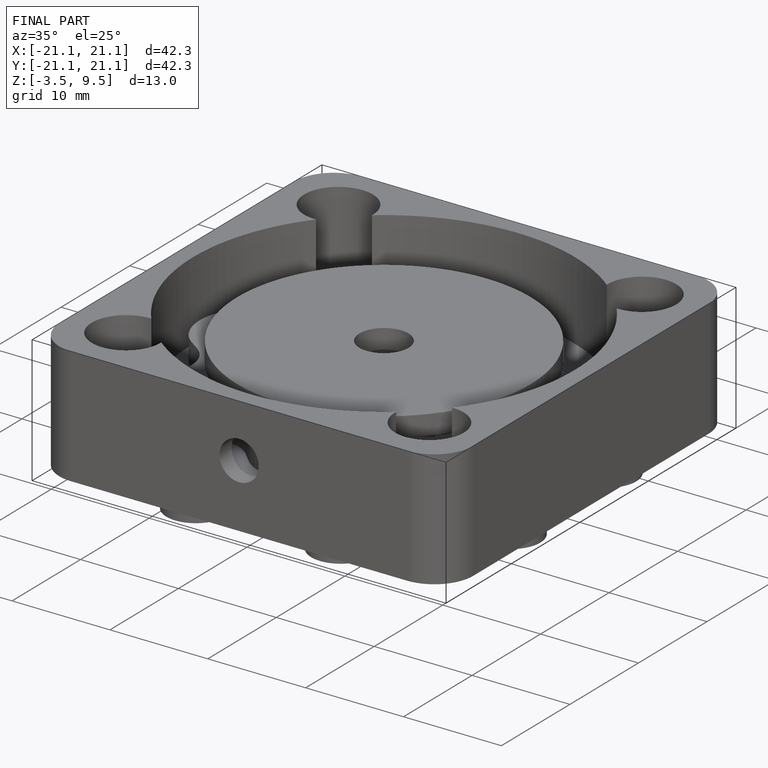
[diagram: finished part — iso view with bounding-box wireframe]
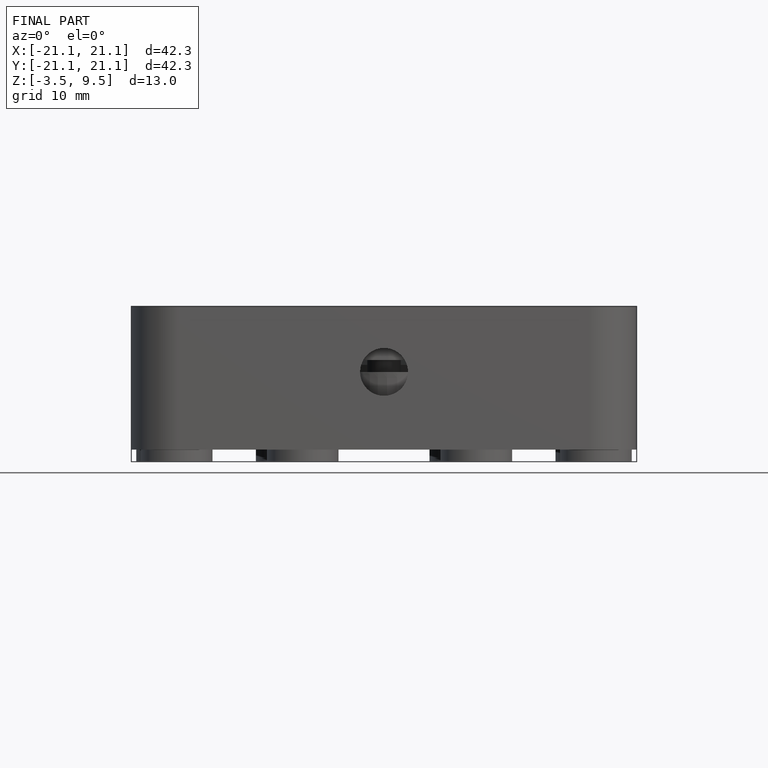
[diagram: finished part — front view with bounding-box wireframe]
